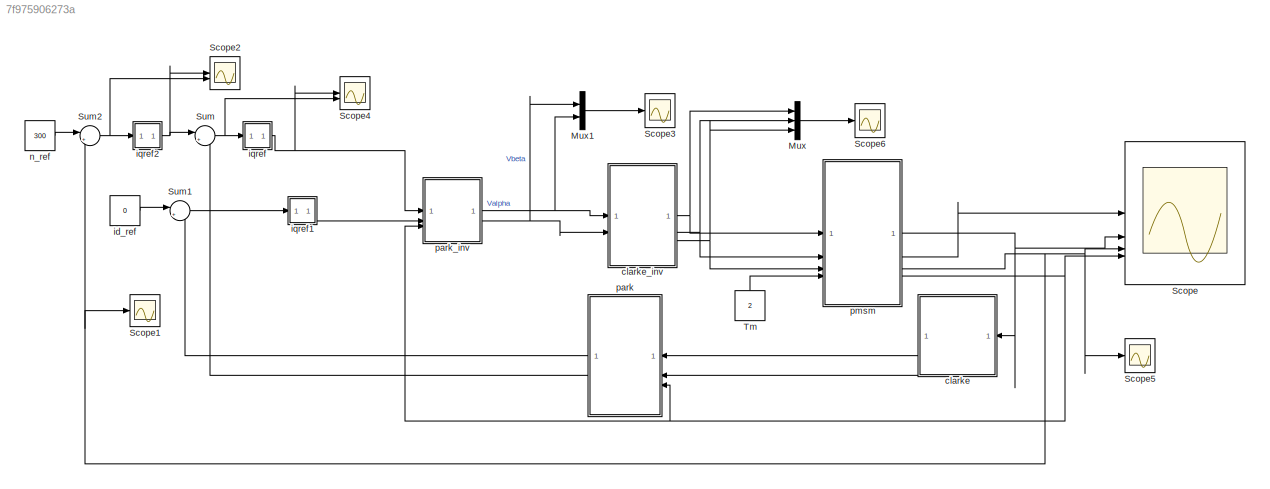
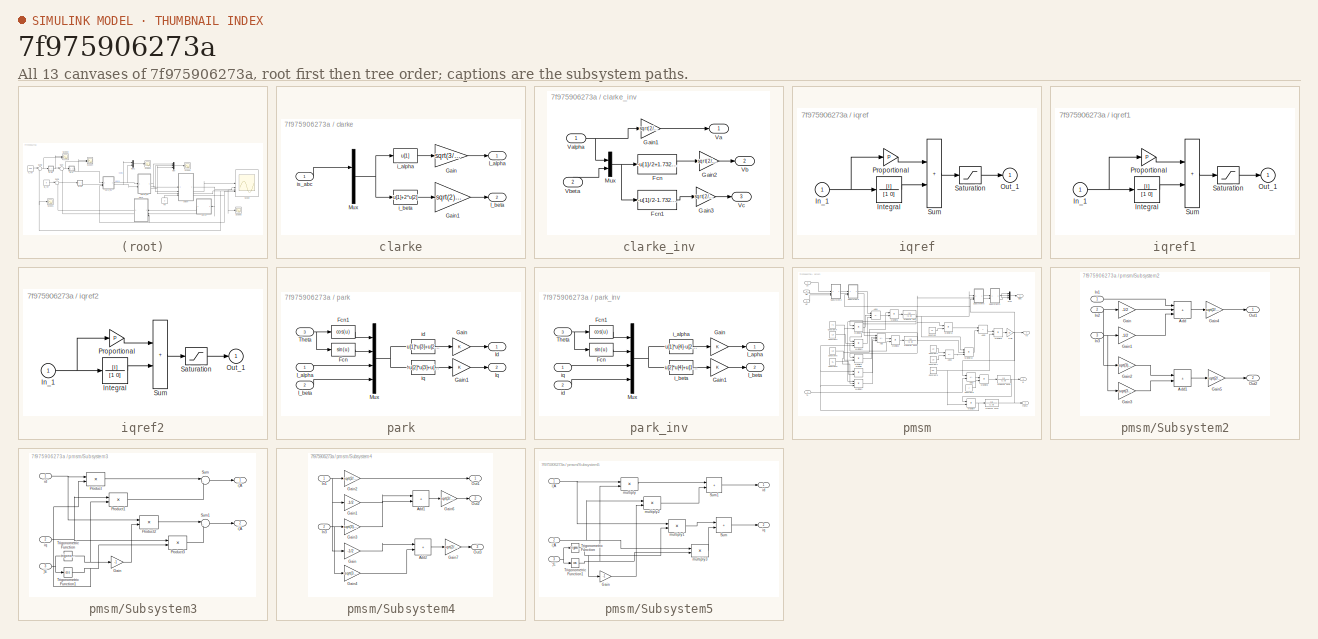
[diagram: thumbnail index - all 13 canvases of the model, root first then tree order]
MODEL mdl_7f975906273a
KIND model
CONFIG AbsTol = auto
CONFIG EnableMultiTasking = on
CONFIG FixedStep = auto
CONFIG MaxStep = 0.00001
CONFIG MinStep = auto
CONFIG RelTol = 1e-4
CONFIG SampleTimeConstraint = Unconstrained
CONFIG SolverName = ode23tb
CONFIG StartTime = 0.0
CONFIG StopTime = 10
BLOCK [Mux] Mux
  DisplayOption = bar
  Inputs = 3
BLOCK [Mux] Mux1
  DisplayOption = bar
  Inputs = 2
BLOCK [Scope] Scope
  Floating = off
  NameLocation = top
  NumInputPorts = 4
  ScopeSpecificationString = Simulink.scopes.TimeScopeBlockCfg('CurrentConfiguration', extmgr.ConfigurationSet(extmgr.Configuration('Core','General UI',true),extmgr.Configuration('Core','Source UI',true),extmgr.Configuration('Sources','WiredSimulink',true,'DataLogging',true,'DataLoggingVariableName','ia','DataLoggingSaveFormat','StructureWithTime','DataLoggingDecimation','20','DataLoggingDecimateData',true),extmgr.Configurati...<+3814ch>
BLOCK [Scope] Scope1
  Floating = off
  NumInputPorts = 1
  ScopeSpecificationString = C++SS(StrPVP('Location','[378, 297, 702, 536]'),StrPVP('Open','off'),StrPVP('ZoomMode','yonly'),MxPVP('AxesTitles',54,'struct(''axes1'',''%<SignalLabel>'')'),StrPVP('TimeRange','1'),StrPVP('YMin','1'),StrPVP('YMax','6'),StrPVP('SaveName','ScopeData1'),StrPVP('DataFormat','StructureWithTime'),StrPVP('LimitDataPoints','off'),StrPVP('BlockParamSampleTime','0'),StrPVP('Decimation','1'),StrPVP('BlockPa...<+23ch>
BLOCK [Scope] Scope2
  Floating = off
  NumInputPorts = 2
  ScopeSpecificationString = C++SS(StrPVP('Location','[98, 382, 422, 621]'),StrPVP('Open','off'),StrPVP('ZoomMode','xonly'),MxPVP('AxesTitles',54,'struct(''axes1'',''%<SignalLabel>'',''axes2'',''%<SignalLabel>'')'),StrPVP('TimeRange','1'),StrPVP('YMin','355~49.9335'),StrPVP('YMax','372.5~49.9375'),StrPVP('SaveName','ScopeData5'),StrPVP('DataFormat','StructureWithTime'),StrPVP('LimitDataPoints','off'),StrPVP('BlockParamSampleT...<+73ch>
BLOCK [Scope] Scope3
  Floating = off
  NumInputPorts = 1
  ScopeSpecificationString = C++SS(StrPVP('Location','[382, 320, 706, 559]'),StrPVP('Open','off'),StrPVP('ZoomMode','xonly'),MxPVP('AxesTitles',54,'struct(''axes1'',''%<SignalLabel>'')'),StrPVP('TimeRange','1'),StrPVP('YMin','-400'),StrPVP('YMax','350'),StrPVP('DataFormat','StructureWithTime'),StrPVP('LimitDataPoints','off'),StrPVP('BlockParamSampleTime','0'),StrPVP('Decimation','1'),StrPVP('BlockParamSampleInput','off'))
BLOCK [Scope] Scope4
  Floating = off
  NumInputPorts = 2
  ScopeSpecificationString = C++SS(StrPVP('Location','[473, 281, 797, 520]'),StrPVP('Open','off'),StrPVP('ZoomMode','xonly'),MxPVP('AxesTitles',54,'struct(''axes1'',''%<SignalLabel>'',''axes2'',''%<SignalLabel>'')'),StrPVP('TimeRange','1'),StrPVP('YMin','1~-5'),StrPVP('YMax','6~5'),StrPVP('SaveName','ScopeData7'),StrPVP('DataFormat','StructureWithTime'),StrPVP('LimitDataPoints','off'),StrPVP('BlockParamSampleTime','0'),StrPVP...<+57ch>
BLOCK [Scope] Scope5
  Floating = off
  NumInputPorts = 1
  ScopeSpecificationString = Simulink.scopes.TimeScopeBlockCfg('CurrentConfiguration', extmgr.ConfigurationSet(extmgr.Configuration('Core','General UI',true),extmgr.Configuration('Core','Source UI',true),extmgr.Configuration('Sources','WiredSimulink',true,'DataLogging',true,'DataLoggingVariableName','w1','DataLoggingSaveFormat','Array','DataLoggingDecimation','1','DataLoggingDecimateData',true),extmgr.Configuration('Visuals',...<+1669ch>
BLOCK [Scope] Scope6
  Floating = off
  NumInputPorts = 1
  ScopeSpecificationString = Simulink.scopes.TimeScopeBlockCfg('CurrentConfiguration', extmgr.ConfigurationSet(extmgr.Configuration('Core','General UI',true),extmgr.Configuration('Core','Source UI',true),extmgr.Configuration('Sources','WiredSimulink',true,'DataLoggingVariableName','ScopeData2','DataLoggingSaveFormat','StructureWithTime','DataLoggingDecimation','1','DataLoggingDecimateData',true),extmgr.Configuration('Visuals'...<+1774ch>
BLOCK [Sum] Sum
  Inputs = |+-
  SaturateOnIntegerOverflow = on
BLOCK [Sum] Sum1
  Inputs = |+-
  SaturateOnIntegerOverflow = on
BLOCK [Sum] Sum2
  Inputs = |+-
  SaturateOnIntegerOverflow = on
BLOCK [Constant] Tm
  NameLocation = right
  Value = 2
BLOCK [SubSystem] clarke
BLOCK [Gain] clarke/Gain
  Gain = sqrt(3/2)
  OutDataTypeStr = Inherit: Same as input
  ParamDataTypeStr = Inherit: Same as input
  SaturateOnIntegerOverflow = on
BLOCK [Gain] clarke/Gain1
  Gain = sqrt(2)/2
  OutDataTypeStr = Inherit: Same as input
  ParamDataTypeStr = Inherit: Same as input
  SaturateOnIntegerOverflow = on
BLOCK [Outport] clarke/I_alpha
  InitialOutput = 0
BLOCK [Outport] clarke/I_beta
  InitialOutput = 0
  Port = 2
BLOCK [Mux] clarke/Mux
  Inputs = [3]
BLOCK [Fcn] clarke/i_alpha
  Expr = u[1]
  NameLocation = top
BLOCK [Fcn] clarke/i_beta
  Expr = u[1]+2*u[2]
BLOCK [Inport] clarke/is_abc
BLOCK [SubSystem] clarke_inv
BLOCK [Fcn] clarke_inv/Fcn
  Expr = -u[1]/2+1.73205081*u[2]/2
BLOCK [Fcn] clarke_inv/Fcn1
  Expr = -u[1]/2-1.73205081*u[2]/2
BLOCK [Gain] clarke_inv/Gain1
  Gain = sqrt(2/3)
  OutDataTypeStr = Inherit: Same as input
  ParamDataTypeStr = Inherit: Same as input
  SaturateOnIntegerOverflow = on
BLOCK [Gain] clarke_inv/Gain2
  Gain = sqrt(2/3)
  OutDataTypeStr = Inherit: Same as input
  ParamDataTypeStr = Inherit: Same as input
  SaturateOnIntegerOverflow = on
BLOCK [Gain] clarke_inv/Gain3
  Gain = sqrt(2/3)
  OutDataTypeStr = Inherit: Same as input
  ParamDataTypeStr = Inherit: Same as input
  SaturateOnIntegerOverflow = on
BLOCK [Mux] clarke_inv/Mux
  DisplayOption = bar
  Inputs = 2
BLOCK [Outport] clarke_inv/Va
BLOCK [Inport] clarke_inv/Valpha
BLOCK [Outport] clarke_inv/Vb
  Port = 2
BLOCK [Inport] clarke_inv/Vbeta
  NameLocation = right
  Port = 2
BLOCK [Outport] clarke_inv/Vc
  Port = 3
BLOCK [Constant] id_ref
  Value = 0
BLOCK [SubSystem] iqref
BLOCK [Inport] iqref/In_1
BLOCK [TransferFcn] iqref/Integral
  Denominator = [1 0]
  Numerator = [I]
BLOCK [Outport] iqref/Out_1
  InitialOutput = 0
BLOCK [Gain] iqref/Proportional
  Gain = P
  NameLocation = top
  OutDataTypeStr = Inherit: Same as input
  ParamDataTypeStr = Inherit: Same as input
  SaturateOnIntegerOverflow = on
BLOCK [Saturate] iqref/Saturation
  LowerLimit = min
  UpperLimit = max
BLOCK [Sum] iqref/Sum
  IconShape = rectangular
  InputSameDT = on
  OutDataTypeStr = Inherit: Same as first input
  SaturateOnIntegerOverflow = on
BLOCK [SubSystem] iqref1
BLOCK [Inport] iqref1/In_1
BLOCK [TransferFcn] iqref1/Integral
  Denominator = [1 0]
  Numerator = [I]
BLOCK [Outport] iqref1/Out_1
  InitialOutput = 0
BLOCK [Gain] iqref1/Proportional
  Gain = P
  NameLocation = top
  OutDataTypeStr = Inherit: Same as input
  ParamDataTypeStr = Inherit: Same as input
  SaturateOnIntegerOverflow = on
BLOCK [Saturate] iqref1/Saturation
  LowerLimit = min
  UpperLimit = max
BLOCK [Sum] iqref1/Sum
  IconShape = rectangular
  InputSameDT = on
  OutDataTypeStr = Inherit: Same as first input
  SaturateOnIntegerOverflow = on
BLOCK [SubSystem] iqref2
BLOCK [Inport] iqref2/In_1
BLOCK [TransferFcn] iqref2/Integral
  Denominator = [1 0]
  Numerator = [I]
BLOCK [Outport] iqref2/Out_1
  InitialOutput = 0
BLOCK [Gain] iqref2/Proportional
  Gain = P
  NameLocation = top
  OutDataTypeStr = Inherit: Same as input
  ParamDataTypeStr = Inherit: Same as input
  SaturateOnIntegerOverflow = on
BLOCK [Saturate] iqref2/Saturation
  LowerLimit = min
  UpperLimit = max
BLOCK [Sum] iqref2/Sum
  IconShape = rectangular
  InputSameDT = on
  OutDataTypeStr = Inherit: Same as first input
  SaturateOnIntegerOverflow = on
BLOCK [Constant] n_ref
  Value = 300
BLOCK [SubSystem] park
BLOCK [Fcn] park/Fcn
  Expr = sin(u)
BLOCK [Fcn] park/Fcn1
  Expr = cos(u)
BLOCK [Gain] park/Gain
  OutDataTypeStr = Inherit: Same as input
  ParamDataTypeStr = Inherit: Same as input
  SaturateOnIntegerOverflow = on
BLOCK [Gain] park/Gain1
  OutDataTypeStr = Inherit: Same as input
  ParamDataTypeStr = Inherit: Same as input
  SaturateOnIntegerOverflow = on
BLOCK [Inport] park/I_alpha
BLOCK [Inport] park/I_beta
  Port = 2
BLOCK [Outport] park/Id
  InitialOutput = 0
BLOCK [Outport] park/Iq
  InitialOutput = 0
  Port = 2
BLOCK [Mux] park/Mux
  Inputs = [1 1 1 1]
BLOCK [Inport] park/Theta
  Port = 3
BLOCK [Fcn] park/id
  Expr = u[1]*u[3]+u[2]*u[4]
  NameLocation = top
BLOCK [Fcn] park/iq
  Expr = -u[2]*u[3]+u[1]*u[4]
BLOCK [SubSystem] park_inv
BLOCK [Fcn] park_inv/Fcn
  Expr = sin(u)
BLOCK [Fcn] park_inv/Fcn1
  Expr = cos(u)
BLOCK [Gain] park_inv/Gain
  OutDataTypeStr = Inherit: Same as input
  ParamDataTypeStr = Inherit: Same as input
  SaturateOnIntegerOverflow = on
BLOCK [Gain] park_inv/Gain1
  OutDataTypeStr = Inherit: Same as input
  ParamDataTypeStr = Inherit: Same as input
  SaturateOnIntegerOverflow = on
BLOCK [Outport] park_inv/I_apha
  InitialOutput = 0
BLOCK [Outport] park_inv/I_beta
  InitialOutput = 0
  Port = 2
BLOCK [Mux] park_inv/Mux
  Inputs = [1 1 1 1]
BLOCK [Inport] park_inv/Theta
  Port = 3
BLOCK [Fcn] park_inv/i_alpha
  Expr = u[1]*u[4]-u[2]*u[3]
  NameLocation = top
BLOCK [Fcn] park_inv/i_beta
  Expr = u[2]*u[4]+u[1]*u[3]
BLOCK [Inport] park_inv/id
  Port = 2
BLOCK [Inport] park_inv/iq
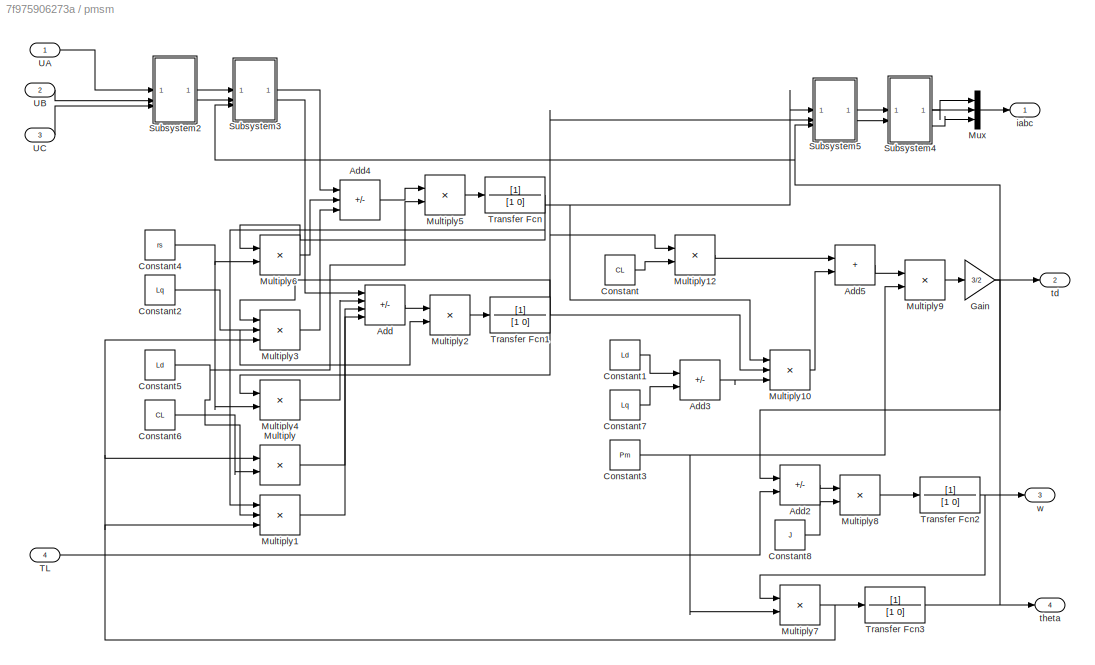
BLOCK [SubSystem] pmsm
BLOCK [Sum] pmsm/Add
  IconShape = rectangular
  Inputs = +---
  OutDataTypeStr = Inherit: Same as first input
  SaturateOnIntegerOverflow = on
BLOCK [Sum] pmsm/Add2
  IconShape = rectangular
  InputSameDT = on
  Inputs = +-
  OutDataTypeStr = Inherit: Same as first input
  SaturateOnIntegerOverflow = on
BLOCK [Sum] pmsm/Add3
  IconShape = rectangular
  InputSameDT = on
  Inputs = +-
  OutDataTypeStr = Inherit: Same as first input
  SaturateOnIntegerOverflow = on
BLOCK [Sum] pmsm/Add4
  IconShape = rectangular
  InputSameDT = on
  Inputs = +-+
  OutDataTypeStr = Inherit: Same as first input
  SaturateOnIntegerOverflow = on
BLOCK [Sum] pmsm/Add5
  IconShape = rectangular
  InputSameDT = on
  OutDataTypeStr = Inherit: Same as first input
  SaturateOnIntegerOverflow = on
BLOCK [Constant] pmsm/Constant
  Value = CL
BLOCK [Constant] pmsm/Constant1
  Value = Ld
BLOCK [Constant] pmsm/Constant2
  Value = Lq
BLOCK [Constant] pmsm/Constant3
  Value = Pm
BLOCK [Constant] pmsm/Constant4
  Value = rs
BLOCK [Constant] pmsm/Constant5
  Value = Ld
BLOCK [Constant] pmsm/Constant6
  Value = CL
BLOCK [Constant] pmsm/Constant7
  Value = Lq
BLOCK [Constant] pmsm/Constant8
  Value = J
BLOCK [Gain] pmsm/Gain
  Gain = 3/2
  OutDataTypeStr = Inherit: Same as input
  ParamDataTypeStr = Inherit: Same as input
  SaturateOnIntegerOverflow = on
BLOCK [Product] pmsm/Multiply
  Inputs = **
  OutDataTypeStr = Inherit: Same as first input
  SaturateOnIntegerOverflow = on
BLOCK [Product] pmsm/Multiply1
  Inputs = ***
  OutDataTypeStr = Inherit: Same as first input
  SaturateOnIntegerOverflow = on
BLOCK [Product] pmsm/Multiply10
  Inputs = ***
  OutDataTypeStr = Inherit: Same as first input
  SaturateOnIntegerOverflow = on
BLOCK [Product] pmsm/Multiply12
  Inputs = **
  OutDataTypeStr = Inherit: Same as first input
  SaturateOnIntegerOverflow = on
BLOCK [Product] pmsm/Multiply2
  Inputs = */
  OutDataTypeStr = Inherit: Same as first input
  SaturateOnIntegerOverflow = on
BLOCK [Product] pmsm/Multiply3
  Inputs = ***
  OutDataTypeStr = Inherit: Same as first input
  SaturateOnIntegerOverflow = on
BLOCK [Product] pmsm/Multiply4
  Inputs = **
  OutDataTypeStr = Inherit: Same as first input
  SaturateOnIntegerOverflow = on
BLOCK [Product] pmsm/Multiply5
  Inputs = */
  OutDataTypeStr = Inherit: Same as first input
  SaturateOnIntegerOverflow = on
BLOCK [Product] pmsm/Multiply6
  Inputs = **
  OutDataTypeStr = Inherit: Same as first input
  SaturateOnIntegerOverflow = on
BLOCK [Product] pmsm/Multiply7
  Inputs = **
  OutDataTypeStr = Inherit: Same as first input
  SaturateOnIntegerOverflow = on
BLOCK [Product] pmsm/Multiply8
  Inputs = */
  OutDataTypeStr = Inherit: Same as first input
  SaturateOnIntegerOverflow = on
BLOCK [Product] pmsm/Multiply9
  Inputs = **
  OutDataTypeStr = Inherit: Same as first input
  SaturateOnIntegerOverflow = on
BLOCK [Mux] pmsm/Mux
  DisplayOption = bar
  Inputs = 3
BLOCK [SubSystem] pmsm/Subsystem2
BLOCK [Sum] pmsm/Subsystem2/Add
  IconShape = rectangular
  InputSameDT = on
  Inputs = +++
  OutDataTypeStr = Inherit: Same as first input
  SaturateOnIntegerOverflow = on
BLOCK [Sum] pmsm/Subsystem2/Add1
  IconShape = rectangular
  InputSameDT = on
  OutDataTypeStr = Inherit: Same as first input
  SaturateOnIntegerOverflow = on
BLOCK [Gain] pmsm/Subsystem2/Gain
  Gain = -1/2
  OutDataTypeStr = Inherit: Same as input
  ParamDataTypeStr = Inherit: Same as input
  SaturateOnIntegerOverflow = on
BLOCK [Gain] pmsm/Subsystem2/Gain1
  Gain = -1/2
  OutDataTypeStr = Inherit: Same as input
  ParamDataTypeStr = Inherit: Same as input
  SaturateOnIntegerOverflow = on
BLOCK [Gain] pmsm/Subsystem2/Gain2
  Gain = sqrt(3)/2
  OutDataTypeStr = Inherit: Same as input
  ParamDataTypeStr = Inherit: Same as input
  SaturateOnIntegerOverflow = on
BLOCK [Gain] pmsm/Subsystem2/Gain3
  Gain = -sqrt(3)/2
  OutDataTypeStr = Inherit: Same as input
  ParamDataTypeStr = Inherit: Same as input
  SaturateOnIntegerOverflow = on
BLOCK [Gain] pmsm/Subsystem2/Gain4
  Gain = sqrt(2/3)
  OutDataTypeStr = Inherit: Same as input
  ParamDataTypeStr = Inherit: Same as input
  SaturateOnIntegerOverflow = on
BLOCK [Gain] pmsm/Subsystem2/Gain5
  Gain = sqrt(2/3)
  OutDataTypeStr = Inherit: Same as input
  ParamDataTypeStr = Inherit: Same as input
  SaturateOnIntegerOverflow = on
BLOCK [Inport] pmsm/Subsystem2/In1
BLOCK [Inport] pmsm/Subsystem2/In2
  Port = 2
BLOCK [Inport] pmsm/Subsystem2/In3
  Port = 3
BLOCK [Outport] pmsm/Subsystem2/Out1
BLOCK [Outport] pmsm/Subsystem2/Out2
  Port = 2
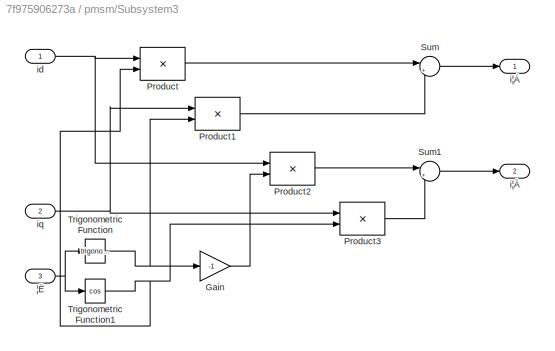
BLOCK [SubSystem] pmsm/Subsystem3
BLOCK [Gain] pmsm/Subsystem3/Gain
  Gain = -1
  OutDataTypeStr = Inherit: Same as input
  ParamDataTypeStr = Inherit: Same as input
  SaturateOnIntegerOverflow = on
BLOCK [Product] pmsm/Subsystem3/Product
  OutDataTypeStr = Inherit: Same as first input
  SaturateOnIntegerOverflow = on
BLOCK [Product] pmsm/Subsystem3/Product1
  OutDataTypeStr = Inherit: Same as first input
  SaturateOnIntegerOverflow = on
BLOCK [Product] pmsm/Subsystem3/Product2
  OutDataTypeStr = Inherit: Same as first input
  SaturateOnIntegerOverflow = on
BLOCK [Product] pmsm/Subsystem3/Product3
  OutDataTypeStr = Inherit: Same as first input
  SaturateOnIntegerOverflow = on
BLOCK [Sum] pmsm/Subsystem3/Sum
  InputSameDT = on
  Inputs = |++
  OutDataTypeStr = Inherit: Same as first input
  SaturateOnIntegerOverflow = on
BLOCK [Sum] pmsm/Subsystem3/Sum1
  InputSameDT = on
  Inputs = |++
  OutDataTypeStr = Inherit: Same as first input
  SaturateOnIntegerOverflow = on
BLOCK [Trigonometry] pmsm/Subsystem3/Trigonometric Function
BLOCK [Trigonometry] pmsm/Subsystem3/Trigonometric Function1
  Operator = cos
BLOCK [Inport] pmsm/Subsystem3/id
BLOCK [Inport] pmsm/Subsystem3/iq
  Port = 2
BLOCK [Outport] pmsm/Subsystem3/i¦Á
BLOCK [Outport] pmsm/Subsystem3/i¦Â
  Port = 2
BLOCK [Inport] pmsm/Subsystem3/¦Ë
  Port = 3
BLOCK [SubSystem] pmsm/Subsystem4
BLOCK [Sum] pmsm/Subsystem4/Add1
  IconShape = rectangular
  InputSameDT = on
  OutDataTypeStr = Inherit: Same as first input
  SaturateOnIntegerOverflow = on
BLOCK [Sum] pmsm/Subsystem4/Add2
  IconShape = rectangular
  InputSameDT = on
  OutDataTypeStr = Inherit: Same as first input
  SaturateOnIntegerOverflow = on
BLOCK [Gain] pmsm/Subsystem4/Gain
  Gain = -1/2
  OutDataTypeStr = Inherit: Same as input
  ParamDataTypeStr = Inherit: Same as input
  SaturateOnIntegerOverflow = on
BLOCK [Gain] pmsm/Subsystem4/Gain1
  Gain = -1/2
  OutDataTypeStr = Inherit: Same as input
  ParamDataTypeStr = Inherit: Same as input
  SaturateOnIntegerOverflow = on
BLOCK [Gain] pmsm/Subsystem4/Gain2
  Gain = sqrt(2/3)
  OutDataTypeStr = Inherit: Same as input
  ParamDataTypeStr = Inherit: Same as input
  SaturateOnIntegerOverflow = on
BLOCK [Gain] pmsm/Subsystem4/Gain3
  Gain = sqrt(3)/2
  OutDataTypeStr = Inherit: Same as input
  ParamDataTypeStr = Inherit: Same as input
  SaturateOnIntegerOverflow = on
BLOCK [Gain] pmsm/Subsystem4/Gain4
  Gain = -sqrt(3)/2
  OutDataTypeStr = Inherit: Same as input
  ParamDataTypeStr = Inherit: Same as input
  SaturateOnIntegerOverflow = on
BLOCK [Gain] pmsm/Subsystem4/Gain6
  Gain = sqrt(2/3)
  OutDataTypeStr = Inherit: Same as input
  ParamDataTypeStr = Inherit: Same as input
  SaturateOnIntegerOverflow = on
BLOCK [Gain] pmsm/Subsystem4/Gain7
  Gain = sqrt(2/3)
  OutDataTypeStr = Inherit: Same as input
  ParamDataTypeStr = Inherit: Same as input
  SaturateOnIntegerOverflow = on
BLOCK [Inport] pmsm/Subsystem4/In1
BLOCK [Inport] pmsm/Subsystem4/In3
  Port = 2
BLOCK [Outport] pmsm/Subsystem4/Out1
BLOCK [Outport] pmsm/Subsystem4/Out2
  Port = 2
BLOCK [Outport] pmsm/Subsystem4/Out3
  Port = 3
BLOCK [SubSystem] pmsm/Subsystem5
BLOCK [Gain] pmsm/Subsystem5/Gain
  Gain = -1
  OutDataTypeStr = Inherit: Same as input
  ParamDataTypeStr = Inherit: Same as input
  SaturateOnIntegerOverflow = on
BLOCK [Sum] pmsm/Subsystem5/Sum
  IconShape = rectangular
  Inputs = |++
  OutDataTypeStr = Inherit: Same as first input
  SaturateOnIntegerOverflow = on
BLOCK [Sum] pmsm/Subsystem5/Sum1
  IconShape = rectangular
  Inputs = |++
  OutDataTypeStr = Inherit: Same as first input
  SaturateOnIntegerOverflow = on
BLOCK [Trigonometry] pmsm/Subsystem5/Trigonometric Function
BLOCK [Trigonometry] pmsm/Subsystem5/Trigonometric Function1
  Operator = cos
BLOCK [Outport] pmsm/Subsystem5/id
BLOCK [Outport] pmsm/Subsystem5/iq
  Port = 2
BLOCK [Inport] pmsm/Subsystem5/i¦Á
BLOCK [Inport] pmsm/Subsystem5/i¦Â
  Port = 2
BLOCK [Product] pmsm/Subsystem5/multiply
  OutDataTypeStr = Inherit: Same as first input
  SaturateOnIntegerOverflow = on
BLOCK [Product] pmsm/Subsystem5/multiply1
  OutDataTypeStr = Inherit: Same as first input
  SaturateOnIntegerOverflow = on
BLOCK [Product] pmsm/Subsystem5/multiply2
  OutDataTypeStr = Inherit: Same as first input
  SaturateOnIntegerOverflow = on
BLOCK [Product] pmsm/Subsystem5/multiply3
  OutDataTypeStr = Inherit: Same as first input
  SaturateOnIntegerOverflow = on
BLOCK [Inport] pmsm/Subsystem5/¦Ë
  Port = 3
BLOCK [Inport] pmsm/TL
  Port = 4
BLOCK [TransferFcn] pmsm/Transfer Fcn
  AbsoluteTolerance = 1e-3
  Denominator = [1 0]
BLOCK [TransferFcn] pmsm/Transfer Fcn1
  Denominator = [1 0]
BLOCK [TransferFcn] pmsm/Transfer Fcn2
  Denominator = [1 0]
BLOCK [TransferFcn] pmsm/Transfer Fcn3
  Denominator = [1 0]
BLOCK [Inport] pmsm/UA
BLOCK [Inport] pmsm/UB
  Port = 2
BLOCK [Inport] pmsm/UC
  Port = 3
BLOCK [Outport] pmsm/iabc
BLOCK [Outport] pmsm/td
  Port = 2
BLOCK [Outport] pmsm/theta
  Port = 4
BLOCK [Outport] pmsm/w
  Port = 3
LINE Mux1:1 -> Scope3:1
LINE Mux:1 -> Scope6:1
LINE Sum1:1 -> iqref1:1
NET Sum2:1 -> Scope2:2, iqref2:1
NET Sum:1 -> Scope4:2, iqref:1
LINE Tm:1 -> pmsm:4
LINE clarke/Gain1:1 -> clarke/I_beta:1
LINE clarke/Gain:1 -> clarke/I_alpha:1
NET clarke/Mux:1 -> clarke/i_alpha:1, clarke/i_beta:1
LINE clarke/i_alpha:1 -> clarke/Gain:1
LINE clarke/i_beta:1 -> clarke/Gain1:1
LINE clarke/is_abc:1 -> clarke/Mux:1
LINE clarke:1 -> park:1
LINE clarke:2 -> park:2
LINE clarke_inv/Fcn1:1 -> clarke_inv/Gain3:1
LINE clarke_inv/Fcn:1 -> clarke_inv/Gain2:1
LINE clarke_inv/Gain1:1 -> clarke_inv/Va:1
LINE clarke_inv/Gain2:1 -> clarke_inv/Vb:1
LINE clarke_inv/Gain3:1 -> clarke_inv/Vc:1
NET clarke_inv/Mux:1 -> clarke_inv/Fcn1:1, clarke_inv/Fcn:1
NET clarke_inv/Valpha:1 -> clarke_inv/Gain1:1, clarke_inv/Mux:1
LINE clarke_inv/Vbeta:1 -> clarke_inv/Mux:2
NET clarke_inv:1 -> Mux:1, pmsm:1
NET clarke_inv:2 -> Mux:2, pmsm:2
NET clarke_inv:3 -> Mux:3, pmsm:3
LINE id_ref:1 -> Sum1:1
NET iqref/In_1:1 -> iqref/Integral:1, iqref/Proportional:1
LINE iqref/Integral:1 -> iqref/Sum:2
LINE iqref/Proportional:1 -> iqref/Sum:1
LINE iqref/Saturation:1 -> iqref/Out_1:1
LINE iqref/Sum:1 -> iqref/Saturation:1
NET iqref1/In_1:1 -> iqref1/Integral:1, iqref1/Proportional:1
LINE iqref1/Integral:1 -> iqref1/Sum:2
LINE iqref1/Proportional:1 -> iqref1/Sum:1
LINE iqref1/Saturation:1 -> iqref1/Out_1:1
LINE iqref1/Sum:1 -> iqref1/Saturation:1
LINE iqref1:1 -> park_inv:2
NET iqref2/In_1:1 -> iqref2/Integral:1, iqref2/Proportional:1
LINE iqref2/Integral:1 -> iqref2/Sum:2
LINE iqref2/Proportional:1 -> iqref2/Sum:1
LINE iqref2/Saturation:1 -> iqref2/Out_1:1
LINE iqref2/Sum:1 -> iqref2/Saturation:1
NET iqref2:1 -> Scope2:1, Sum:1
NET iqref:1 -> Scope4:1, park_inv:1
LINE n_ref:1 -> Sum2:1
LINE park/Fcn1:1 -> park/Mux:1
LINE park/Fcn:1 -> park/Mux:2
LINE park/Gain1:1 -> park/Iq:1
LINE park/Gain:1 -> park/Id:1
LINE park/I_alpha:1 -> park/Mux:3
LINE park/I_beta:1 -> park/Mux:4
NET park/Mux:1 -> park/id:1, park/iq:1
NET park/Theta:1 -> park/Fcn1:1, park/Fcn:1
LINE park/id:1 -> park/Gain:1
LINE park/iq:1 -> park/Gain1:1
LINE park:1 -> Sum1:2
LINE park:2 -> Sum:2
LINE park_inv/Fcn1:1 -> park_inv/Mux:1
LINE park_inv/Fcn:1 -> park_inv/Mux:2
LINE park_inv/Gain1:1 -> park_inv/I_beta:1
LINE park_inv/Gain:1 -> park_inv/I_apha:1
NET park_inv/Mux:1 -> park_inv/i_alpha:1, park_inv/i_beta:1
NET park_inv/Theta:1 -> park_inv/Fcn1:1, park_inv/Fcn:1
LINE park_inv/i_alpha:1 -> park_inv/Gain:1
LINE park_inv/i_beta:1 -> park_inv/Gain1:1
LINE park_inv/id:1 -> park_inv/Mux:4
LINE park_inv/iq:1 -> park_inv/Mux:3
NET park_inv:1 -> Mux1:2, clarke_inv:1
NET park_inv:2 -> Mux1:1, clarke_inv:2
LINE pmsm/Add2:1 -> pmsm/Multiply8:1
LINE pmsm/Add3:1 -> pmsm/Multiply10:3
LINE pmsm/Add4:1 -> pmsm/Multiply5:1
LINE pmsm/Add5:1 -> pmsm/Multiply9:1
LINE pmsm/Add:1 -> pmsm/Multiply2:1
LINE pmsm/Constant1:1 -> pmsm/Add3:1
NET pmsm/Constant2:1 -> pmsm/Multiply2:2, pmsm/Multiply3:2
NET pmsm/Constant3:1 -> pmsm/Multiply7:2, pmsm/Multiply9:2
NET pmsm/Constant4:1 -> pmsm/Multiply4:2, pmsm/Multiply6:2
NET pmsm/Constant5:1 -> pmsm/Multiply1:2, pmsm/Multiply5:2
LINE pmsm/Constant6:1 -> pmsm/Multiply:2
LINE pmsm/Constant7:1 -> pmsm/Add3:2
LINE pmsm/Constant8:1 -> pmsm/Multiply8:2
LINE pmsm/Constant:1 -> pmsm/Multiply12:2
NET pmsm/Gain:1 -> pmsm/Add2:1, pmsm/td:1
LINE pmsm/Multiply10:1 -> pmsm/Add5:2
LINE pmsm/Multiply12:1 -> pmsm/Add5:1
LINE pmsm/Multiply1:1 -> pmsm/Add:4
LINE pmsm/Multiply2:1 -> pmsm/Transfer Fcn1:1
LINE pmsm/Multiply3:1 -> pmsm/Add4:3
LINE pmsm/Multiply4:1 -> pmsm/Add:2
LINE pmsm/Multiply5:1 -> pmsm/Transfer Fcn:1
LINE pmsm/Multiply6:1 -> pmsm/Add4:2
NET pmsm/Multiply7:1 -> pmsm/Multiply1:3, pmsm/Multiply3:3, pmsm/Multiply:1, pmsm/Transfer Fcn3:1
LINE pmsm/Multiply8:1 -> pmsm/Transfer Fcn2:1
LINE pmsm/Multiply9:1 -> pmsm/Gain:1
LINE pmsm/Multiply:1 -> pmsm/Add:3
LINE pmsm/Mux:1 -> pmsm/iabc:1
LINE pmsm/Subsystem2/Add1:1 -> pmsm/Subsystem2/Gain5:1
LINE pmsm/Subsystem2/Add:1 -> pmsm/Subsystem2/Gain4:1
LINE pmsm/Subsystem2/Gain1:1 -> pmsm/Subsystem2/Add:3
LINE pmsm/Subsystem2/Gain2:1 -> pmsm/Subsystem2/Add1:1
LINE pmsm/Subsystem2/Gain3:1 -> pmsm/Subsystem2/Add1:2
LINE pmsm/Subsystem2/Gain4:1 -> pmsm/Subsystem2/Out1:1
LINE pmsm/Subsystem2/Gain5:1 -> pmsm/Subsystem2/Out2:1
LINE pmsm/Subsystem2/Gain:1 -> pmsm/Subsystem2/Add:2
LINE pmsm/Subsystem2/In1:1 -> pmsm/Subsystem2/Add:1
NET pmsm/Subsystem2/In2:1 -> pmsm/Subsystem2/Gain2:1, pmsm/Subsystem2/Gain:1
NET pmsm/Subsystem2/In3:1 -> pmsm/Subsystem2/Gain1:1, pmsm/Subsystem2/Gain3:1
LINE pmsm/Subsystem2:1 -> pmsm/Subsystem3:1
LINE pmsm/Subsystem2:2 -> pmsm/Subsystem3:2
LINE pmsm/Subsystem3/Gain:1 -> pmsm/Subsystem3/Product2:2
LINE pmsm/Subsystem3/Product1:1 -> pmsm/Subsystem3/Sum:2
LINE pmsm/Subsystem3/Product2:1 -> pmsm/Subsystem3/Sum1:1
LINE pmsm/Subsystem3/Product3:1 -> pmsm/Subsystem3/Sum1:2
LINE pmsm/Subsystem3/Product:1 -> pmsm/Subsystem3/Sum:1
LINE pmsm/Subsystem3/Sum1:1 -> pmsm/Subsystem3/i¦Â:1
LINE pmsm/Subsystem3/Sum:1 -> pmsm/Subsystem3/i¦Á:1
NET pmsm/Subsystem3/Trigonometric Function1:1 -> pmsm/Subsystem3/Product3:2, pmsm/Subsystem3/Product:2
NET pmsm/Subsystem3/Trigonometric Function:1 -> pmsm/Subsystem3/Gain:1, pmsm/Subsystem3/Product1:2
NET pmsm/Subsystem3/id:1 -> pmsm/Subsystem3/Product2:1, pmsm/Subsystem3/Product:1
NET pmsm/Subsystem3/iq:1 -> pmsm/Subsystem3/Product1:1, pmsm/Subsystem3/Product3:1
NET pmsm/Subsystem3/¦Ë:1 -> pmsm/Subsystem3/Trigonometric Function1:1, pmsm/Subsystem3/Trigonometric Function:1
LINE pmsm/Subsystem3:1 -> pmsm/Add4:1
LINE pmsm/Subsystem3:2 -> pmsm/Add:1
LINE pmsm/Subsystem4/Add1:1 -> pmsm/Subsystem4/Gain6:1
LINE pmsm/Subsystem4/Add2:1 -> pmsm/Subsystem4/Gain7:1
LINE pmsm/Subsystem4/Gain1:1 -> pmsm/Subsystem4/Add1:1
LINE pmsm/Subsystem4/Gain2:1 -> pmsm/Subsystem4/Out1:1
LINE pmsm/Subsystem4/Gain3:1 -> pmsm/Subsystem4/Add1:2
LINE pmsm/Subsystem4/Gain4:1 -> pmsm/Subsystem4/Add2:2
LINE pmsm/Subsystem4/Gain6:1 -> pmsm/Subsystem4/Out2:1
LINE pmsm/Subsystem4/Gain7:1 -> pmsm/Subsystem4/Out3:1
LINE pmsm/Subsystem4/Gain:1 -> pmsm/Subsystem4/Add2:1
NET pmsm/Subsystem4/In1:1 -> pmsm/Subsystem4/Gain1:1, pmsm/Subsystem4/Gain2:1, pmsm/Subsystem4/Gain:1
NET pmsm/Subsystem4/In3:1 -> pmsm/Subsystem4/Gain3:1, pmsm/Subsystem4/Gain4:1
LINE pmsm/Subsystem4:1 -> pmsm/Mux:1
LINE pmsm/Subsystem4:2 -> pmsm/Mux:2
LINE pmsm/Subsystem4:3 -> pmsm/Mux:3
LINE pmsm/Subsystem5/Gain:1 -> pmsm/Subsystem5/multiply2:2
LINE pmsm/Subsystem5/Sum1:1 -> pmsm/Subsystem5/id:1
LINE pmsm/Subsystem5/Sum:1 -> pmsm/Subsystem5/iq:1
NET pmsm/Subsystem5/Trigonometric Function1:1 -> pmsm/Subsystem5/multiply3:2, pmsm/Subsystem5/multiply:2
NET pmsm/Subsystem5/Trigonometric Function:1 -> pmsm/Subsystem5/Gain:1, pmsm/Subsystem5/multiply1:2
NET pmsm/Subsystem5/i¦Á:1 -> pmsm/Subsystem5/multiply1:1, pmsm/Subsystem5/multiply:1
NET pmsm/Subsystem5/i¦Â:1 -> pmsm/Subsystem5/multiply2:1, pmsm/Subsystem5/multiply3:1
LINE pmsm/Subsystem5/multiply1:1 -> pmsm/Subsystem5/Sum:1
LINE pmsm/Subsystem5/multiply2:1 -> pmsm/Subsystem5/Sum1:2
LINE pmsm/Subsystem5/multiply3:1 -> pmsm/Subsystem5/Sum:2
LINE pmsm/Subsystem5/multiply:1 -> pmsm/Subsystem5/Sum1:1
NET pmsm/Subsystem5/¦Ë:1 -> pmsm/Subsystem5/Trigonometric Function1:1, pmsm/Subsystem5/Trigonometric Function:1
LINE pmsm/Subsystem5:1 -> pmsm/Subsystem4:1
LINE pmsm/Subsystem5:2 -> pmsm/Subsystem4:2
LINE pmsm/TL:1 -> pmsm/Add2:2
NET pmsm/Transfer Fcn1:1 -> pmsm/Multiply10:2, pmsm/Multiply12:1, pmsm/Multiply3:1, pmsm/Multiply4:1, pmsm/Subsystem5:2
NET pmsm/Transfer Fcn2:1 -> pmsm/Multiply7:1, pmsm/w:1
NET pmsm/Transfer Fcn3:1 -> pmsm/Subsystem3:3, pmsm/Subsystem5:3, pmsm/theta:1
NET pmsm/Transfer Fcn:1 -> pmsm/Multiply10:1, pmsm/Multiply1:1, pmsm/Multiply6:1, pmsm/Subsystem5:1
LINE pmsm/UA:1 -> pmsm/Subsystem2:1
LINE pmsm/UB:1 -> pmsm/Subsystem2:2
LINE pmsm/UC:1 -> pmsm/Subsystem2:3
NET pmsm:1 -> Scope:2, clarke:1
LINE pmsm:2 -> Scope:1
NET pmsm:3 -> Scope1:1, Scope5:1, Scope:3, Sum2:2
NET pmsm:4 -> Scope:4, park:3, park_inv:3
note: NET lines group one-source signal fan-out (src -> all destinations, sorted); 1:1 wires keep LINE
